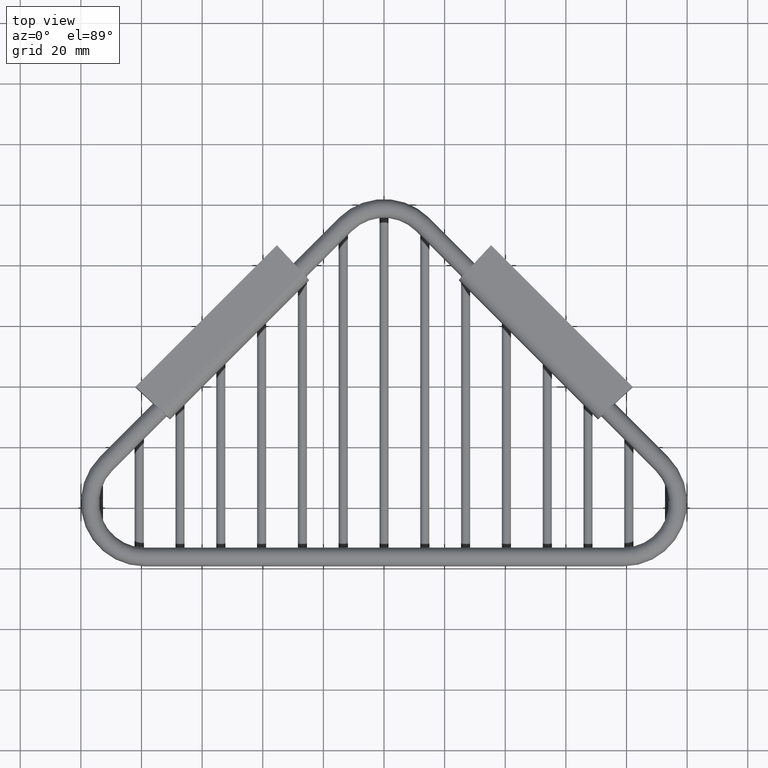
[diagram: clean part render]
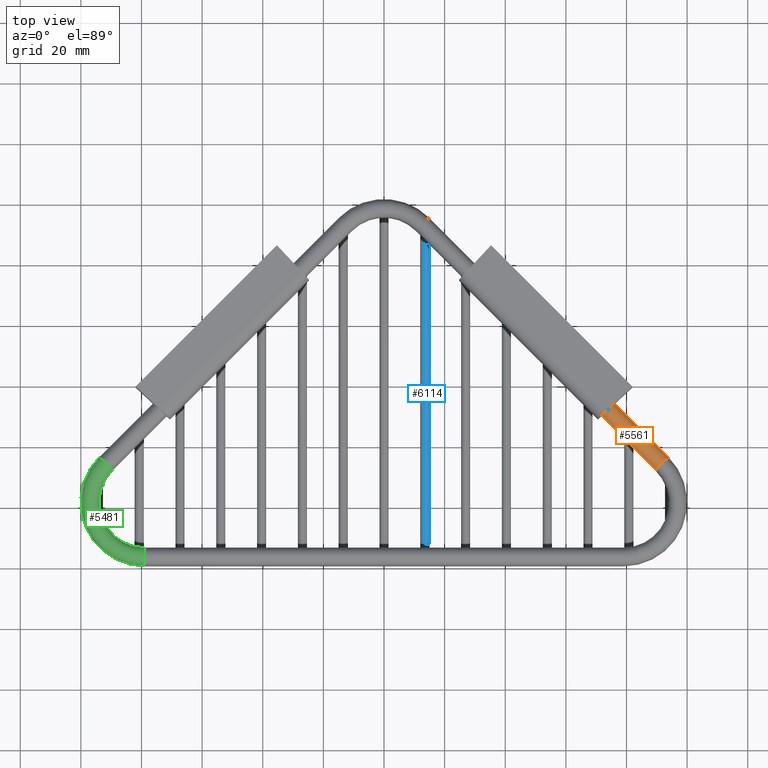
[diagram: same view with three faces highlighted in distinct colors, each labeled with its STEP entity id]
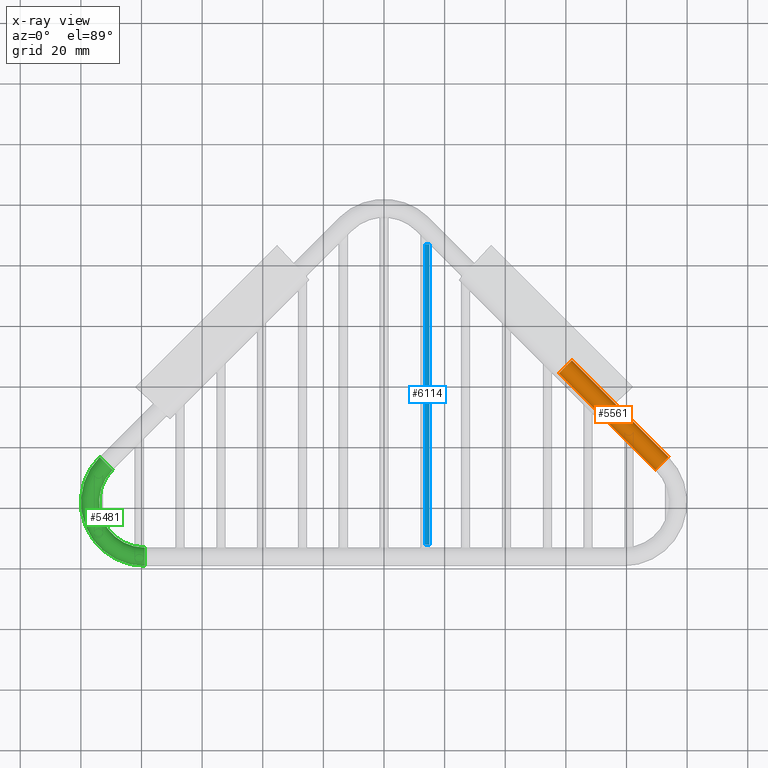
[diagram: x-ray of the same camera — body ghosted, the three highlighted faces saturated]
A machine part, top view with three faces highlighted in distinct colors.
The next image is the same camera in x-ray (body ghosted, the three faces saturated) — at least one of them is partly hidden behind the body in this view.
Their STEP definitions:

[orange] entity #5561 — the highlighted cylindrical surface (edge-blend (fillet) strip) has radius 2.9972 mm, axis along (-0.7071, 0.7071, 0).
#1873=DIRECTION('',(-7.071067811959E-1,7.071067811772E-1,0.E0));
#1874=VECTOR('',#1873,1.774979289829E0);
#1875=CARTESIAN_POINT('',(3.694777308043E0,1.411777308073E0,1.38E-1));
#1876=LINE('',#1875,#1874);
#2071=CARTESIAN_POINT('',(2.356238815543E0,2.583438600180E0,1.38E-1));
#2072=DIRECTION('',(-7.071067811865E-1,7.071067811865E-1,0.E0));
#2073=DIRECTION('',(-7.071067811865E-1,-7.071067811865E-1,1.364257106531E-14));
#2074=AXIS2_PLACEMENT_3D('',#2071,#2072,#2073);
#2079=CARTESIAN_POINT('',(3.611338707861E0,1.328338707862E0,1.38E-1));
#2080=DIRECTION('',(7.071067811865E-1,-7.071067811865E-1,0.E0));
#2081=DIRECTION('',(7.071067811865E-1,7.071067811865E-1,0.E0));
#2082=AXIS2_PLACEMENT_3D('',#2079,#2080,#2081);
#2102=DIRECTION('',(-7.071067811959E-1,7.071067811772E-1,0.E0));
#2103=VECTOR('',#2102,1.774979289819E0);
#2104=CARTESIAN_POINT('',(3.527900107676E0,1.244900107720E0,1.38E-1));
#2105=LINE('',#2104,#2103);
#3573=CARTESIAN_POINT('',(3.694777308041E0,1.411777308041E0,1.38E-1));
#3574=VERTEX_POINT('',#3573);
#3575=CARTESIAN_POINT('',(3.527900107681E0,1.244900107681E0,1.38E-1));
#3576=VERTEX_POINT('',#3575);
#3809=CARTESIAN_POINT('',(2.439677415723E0,2.666877200360E0,1.38E-1));
#3810=VERTEX_POINT('',#3809);
#3813=CARTESIAN_POINT('',(2.272800215363E0,2.5E0,1.38E-1));
#3814=VERTEX_POINT('',#3813);
#5549=CARTESIAN_POINT('',(3.620978047760E0,1.318699367962E0,1.38E-1));
#5550=DIRECTION('',(-7.071067811865E-1,7.071067811865E-1,0.E0));
#5551=DIRECTION('',(7.071067811865E-1,7.071067811865E-1,0.E0));
#5552=AXIS2_PLACEMENT_3D('',#5549,#5550,#5551);
#5553=CYLINDRICAL_SURFACE('',#5552,1.18E-1);
#5554=ORIENTED_EDGE('',*,*,#5349,.T.);
#5555=ORIENTED_EDGE('',*,*,#5365,.F.);
#5556=ORIENTED_EDGE('',*,*,#5421,.T.);
#5558=ORIENTED_EDGE('',*,*,#5557,.T.);
#5559=EDGE_LOOP('',(#5554,#5555,#5556,#5558));
#5560=FACE_OUTER_BOUND('',#5559,.F.);
#2075=CIRCLE('',#2074,1.18E-1);
#2083=CIRCLE('',#2082,1.18E-1);
#5349=EDGE_CURVE('',#3814,#3810,#2075,.T.);
#5365=EDGE_CURVE('',#3574,#3810,#1876,.T.);
#5421=EDGE_CURVE('',#3574,#3576,#2083,.T.);
#5557=EDGE_CURVE('',#3576,#3814,#2105,.T.);
#5561=ADVANCED_FACE('',(#5560),#5553,.T.);

[blue] entity #6114 — the highlighted cylindrical surface (edge-blend (fillet) strip) has radius 1.4986 mm, axis along (0, -1, 0).
#2617=DIRECTION('',(0.E0,1.E0,0.E0));
#2618=VECTOR('',#2617,3.898E0);
#2619=CARTESIAN_POINT('',(5.3E-1,3.15E-1,-1.91E0));
#2620=LINE('',#2619,#2618);
#2624=CARTESIAN_POINT('',(5.3E-1,3.15E-1,-1.969E0));
#2625=DIRECTION('',(0.E0,-1.E0,0.E0));
#2626=DIRECTION('',(0.E0,0.E0,-1.E0));
#2627=AXIS2_PLACEMENT_3D('',#2624,#2625,#2626);
#2632=DIRECTION('',(0.E0,1.E0,0.E0));
#2633=VECTOR('',#2632,3.898E0);
#2634=CARTESIAN_POINT('',(5.3E-1,3.15E-1,-2.028E0));
#2635=LINE('',#2634,#2633);
#2639=CARTESIAN_POINT('',(5.3E-1,4.213E0,-1.969E0));
#2640=DIRECTION('',(0.E0,-1.E0,0.E0));
#2641=DIRECTION('',(0.E0,0.E0,-1.E0));
#2642=AXIS2_PLACEMENT_3D('',#2639,#2640,#2641);
#3853=CARTESIAN_POINT('',(5.3E-1,3.15E-1,-1.91E0));
#3854=CARTESIAN_POINT('',(5.3E-1,3.15E-1,-2.028E0));
#3855=VERTEX_POINT('',#3853);
#3856=VERTEX_POINT('',#3854);
#3857=CARTESIAN_POINT('',(5.3E-1,4.213E0,-1.91E0));
#3858=CARTESIAN_POINT('',(5.3E-1,4.213E0,-2.028E0));
#3859=VERTEX_POINT('',#3857);
#3860=VERTEX_POINT('',#3858);
#6102=CARTESIAN_POINT('',(5.3E-1,3.15E-1,-1.969E0));
#6103=DIRECTION('',(0.E0,-1.E0,0.E0));
#6104=DIRECTION('',(0.E0,0.E0,1.E0));
#6105=AXIS2_PLACEMENT_3D('',#6102,#6103,#6104);
#6106=CYLINDRICAL_SURFACE('',#6105,5.9E-2);
#6107=ORIENTED_EDGE('',*,*,#6067,.T.);
#6108=ORIENTED_EDGE('',*,*,#6097,.T.);
#6110=ORIENTED_EDGE('',*,*,#6109,.F.);
#6111=ORIENTED_EDGE('',*,*,#6093,.F.);
#6112=EDGE_LOOP('',(#6107,#6108,#6110,#6111));
#6113=FACE_OUTER_BOUND('',#6112,.F.);
#2628=CIRCLE('',#2627,5.9E-2);
#2643=CIRCLE('',#2642,5.9E-2);
#6067=EDGE_CURVE('',#3856,#3855,#2628,.T.);
#6093=EDGE_CURVE('',#3856,#3860,#2635,.T.);
#6097=EDGE_CURVE('',#3855,#3859,#2620,.T.);
#6109=EDGE_CURVE('',#3860,#3859,#2643,.T.);
#6114=ADVANCED_FACE('',(#6113),#6106,.T.);

[green] entity #5481 — the highlighted toroidal blend (fillet) surface has major radius 18.0086 mm and minor (blend) radius 2.9972 mm.
#1949=CARTESIAN_POINT('',(-3.11E0,1.18E-1,1.38E-1));
#1950=DIRECTION('',(-1.E0,0.E0,0.E0));
#1951=DIRECTION('',(0.E0,-1.E0,0.E0));
#1952=AXIS2_PLACEMENT_3D('',#1949,#1950,#1951);
#1971=CARTESIAN_POINT('',(-3.11E0,8.27E-1,1.38E-1));
#1972=DIRECTION('',(0.E0,0.E0,1.E0));
#1973=DIRECTION('',(-7.071067811865E-1,7.071067811865E-1,0.E0));
#1974=AXIS2_PLACEMENT_3D('',#1971,#1972,#1973);
#1986=CARTESIAN_POINT('',(-3.611338784039E0,1.328338631816E0,1.38E-1));
#1987=DIRECTION('',(7.071066738364E-1,7.071068885367E-1,0.E0));
#1988=DIRECTION('',(-7.071068885367E-1,7.071066738364E-1,0.E0));
#1989=AXIS2_PLACEMENT_3D('',#1986,#1987,#1988);
#2191=CARTESIAN_POINT('',(-3.11E0,8.27E-1,1.38E-1));
#2192=DIRECTION('',(0.E0,0.E0,1.E0));
#2193=DIRECTION('',(-7.071067811865E-1,7.071067811865E-1,0.E0));
#2194=AXIS2_PLACEMENT_3D('',#2191,#2192,#2193);
#3561=CARTESIAN_POINT('',(-3.694777308041E0,1.411777308074E0,1.38E-1));
#3562=VERTEX_POINT('',#3561);
#3563=CARTESIAN_POINT('',(-3.527900107674E0,1.244900107722E0,1.38E-1));
#3564=VERTEX_POINT('',#3563);
#3565=CARTESIAN_POINT('',(-3.11E0,0.E0,1.38E-1));
#3566=VERTEX_POINT('',#3565);
#3567=CARTESIAN_POINT('',(-3.11E0,2.36E-1,1.38E-1));
#3568=VERTEX_POINT('',#3567);
#5468=CARTESIAN_POINT('',(-3.11E0,8.27E-1,1.38E-1));
#5469=DIRECTION('',(0.E0,0.E0,1.E0));
#5470=DIRECTION('',(-6.941804487528E-1,7.198010173439E-1,0.E0));
#5471=AXIS2_PLACEMENT_3D('',#5468,#5469,#5470);
#5472=TOROIDAL_SURFACE('',#5471,7.090000000936E-1,1.18E-1);
#5473=ORIENTED_EDGE('',*,*,#5459,.F.);
#5475=ORIENTED_EDGE('',*,*,#5474,.T.);
#5477=ORIENTED_EDGE('',*,*,#5476,.T.);
#5478=ORIENTED_EDGE('',*,*,#5433,.F.);
#5479=EDGE_LOOP('',(#5473,#5475,#5477,#5478));
#5480=FACE_OUTER_BOUND('',#5479,.F.);
#1953=CIRCLE('',#1952,1.18E-1);
#1975=CIRCLE('',#1974,8.27E-1);
#1990=CIRCLE('',#1989,1.18E-1);
#2195=CIRCLE('',#2194,5.91E-1);
#5433=EDGE_CURVE('',#3566,#3568,#1953,.T.);
#5459=EDGE_CURVE('',#3562,#3566,#1975,.T.);
#5474=EDGE_CURVE('',#3562,#3564,#1990,.T.);
#5476=EDGE_CURVE('',#3564,#3568,#2195,.T.);
#5481=ADVANCED_FACE('',(#5480),#5472,.T.);